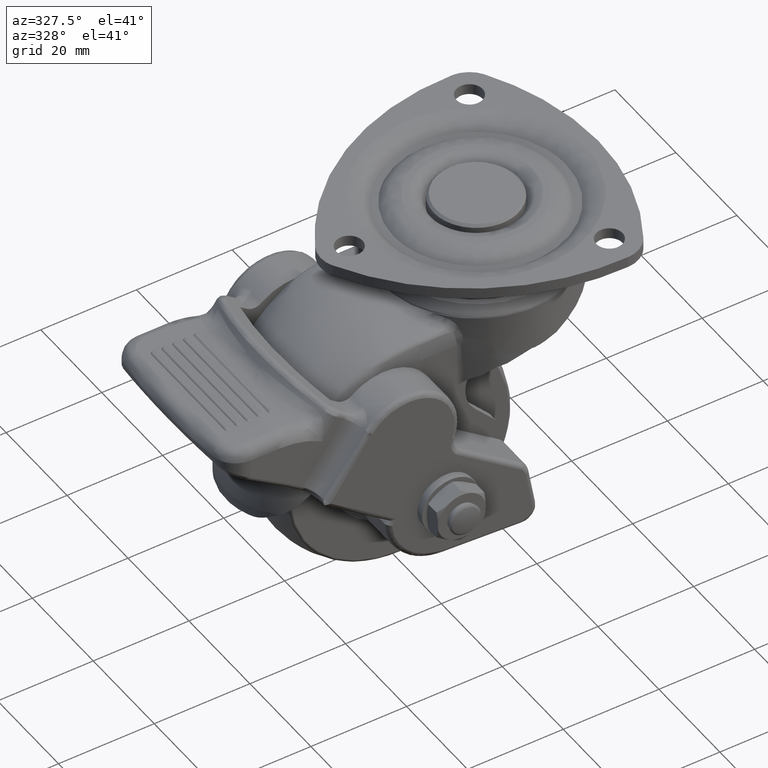
[diagram: clean part render]
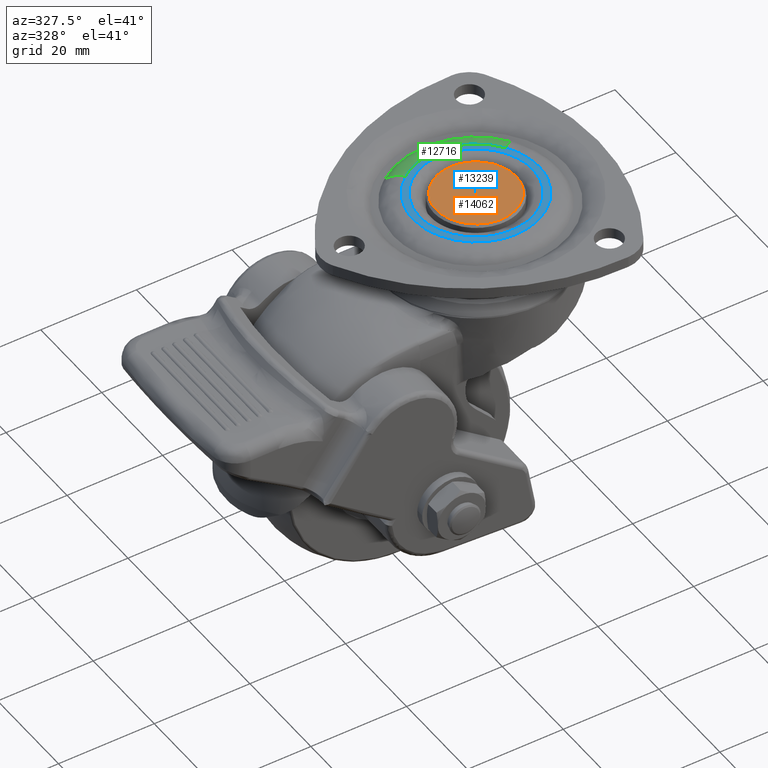
[diagram: same view with three faces highlighted in distinct colors, each labeled with its STEP entity id]
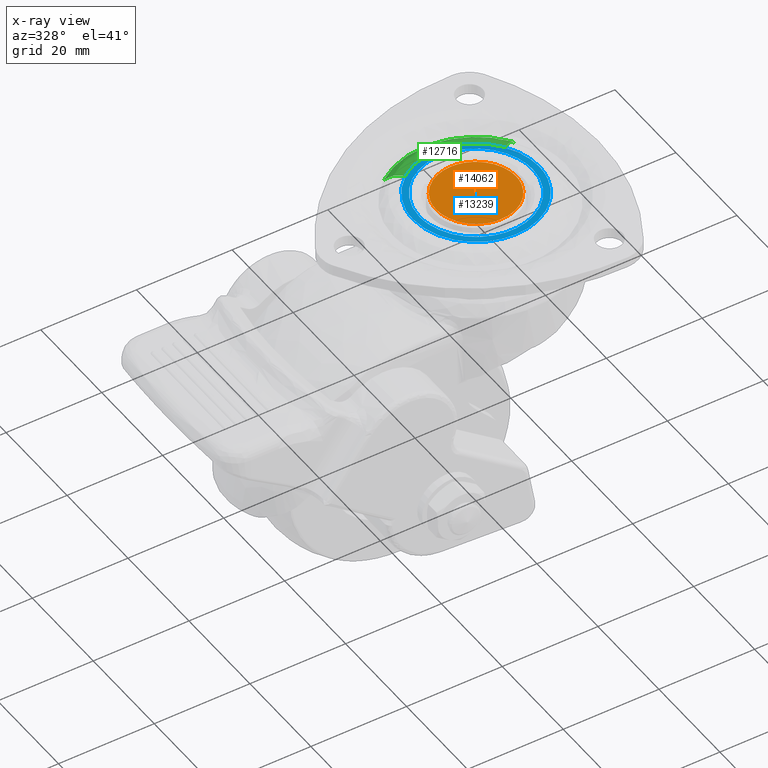
[diagram: x-ray of the same camera — body ghosted, the three highlighted faces saturated]
A machine part, auxiliary view with three faces highlighted in distinct colors.
The next image is the same camera in x-ray (body ghosted, the three faces saturated) — at least one of them is partly hidden behind the body in this view.
Their STEP definitions:

[orange] entity #14062 — the highlighted face is a freeform B-spline surface patch.
#13746=CARTESIAN_POINT('',(-0.550284787504811,-8.331847733449848,-9.000000000045095));
#13747=VERTEX_POINT('',#13746);
#13753=CARTESIAN_POINT('',(-8.350000000000000,0.0,-9.0));
#13754=VERTEX_POINT('',#13753);
#13755=CARTESIAN_POINT('',(-8.350000000000000,0.0,-9.0));
#13756=CARTESIAN_POINT('',(-8.350000000000000,-7.816708142728983,-9.0));
#13757=CARTESIAN_POINT('',(-0.550284787504811,-8.331847733449848,-9.000000000045095));
#13765=(BOUNDED_CURVE()B_SPLINE_CURVE(2,(#13755,#13756,#13757),.UNSPECIFIED.,.F.,.U.)B_SPLINE_CURVE_WITH_KNOTS((3,3),(0.500000000000000,0.738494527059110),.UNSPECIFIED.)CURVE()GEOMETRIC_REPRESENTATION_ITEM()RATIONAL_B_SPLINE_CURVE((1.0,0.720586281201061,0.974281704152363))REPRESENTATION_ITEM(''));
#13766=EDGE_CURVE('',#13754,#13747,#13765,.T.);
#13768=CARTESIAN_POINT('',(0.072866571712113,8.349682057624211,-9.000000000041032));
#13769=VERTEX_POINT('',#13768);
#13770=CARTESIAN_POINT('',(0.072866571712113,8.349682057624211,-9.000000000041032));
#13771=CARTESIAN_POINT('',(0.036433979653209,8.349999999999998,-9.000000000000002));
#13772=CARTESIAN_POINT('',(0.0,8.350000000000000,-9.0));
#13773=CARTESIAN_POINT('',(-8.350000000000000,8.350000000000000,-9.0));
#13774=CARTESIAN_POINT('',(-8.350000000000000,0.0,-9.0));
#13782=(BOUNDED_CURVE()B_SPLINE_CURVE(2,(#13770,#13771,#13772,#13773,#13774),.UNSPECIFIED.,.F.,.U.)B_SPLINE_CURVE_WITH_KNOTS((3,2,3),(0.248460105652341,0.250000000000000,0.500000000000000),.UNSPECIFIED.)CURVE()GEOMETRIC_REPRESENTATION_ITEM()RATIONAL_B_SPLINE_CURVE((0.996414028071080,0.998195901551526,1.0,0.707106781186547,1.0))REPRESENTATION_ITEM(''));
#13783=EDGE_CURVE('',#13769,#13754,#13782,.T.);
#13893=CARTESIAN_POINT('',(8.350000000000000,0.0,-9.0));
#13894=VERTEX_POINT('',#13893);
#13895=CARTESIAN_POINT('',(8.350000000000000,0.0,-9.0));
#13896=CARTESIAN_POINT('',(8.350000000000000,8.277448607872568,-9.000000000000002));
#13897=CARTESIAN_POINT('',(0.072866571712113,8.349682057624211,-9.000000000041032));
#13905=(BOUNDED_CURVE()B_SPLINE_CURVE(2,(#13895,#13896,#13897),.UNSPECIFIED.,.F.,.U.)B_SPLINE_CURVE_WITH_KNOTS((3,3),(0.0,0.248460105652341),.UNSPECIFIED.)CURVE()GEOMETRIC_REPRESENTATION_ITEM()RATIONAL_B_SPLINE_CURVE((1.0,0.708910879635021,0.996414028071080))REPRESENTATION_ITEM(''));
#13906=EDGE_CURVE('',#13894,#13769,#13905,.T.);
#13908=CARTESIAN_POINT('',(-0.550284787504811,-8.331847733449848,-9.000000000045095));
#13909=CARTESIAN_POINT('',(-0.275441788699306,-8.350000000000000,-9.0));
#13910=CARTESIAN_POINT('',(0.0,-8.350000000000000,-9.0));
#13911=CARTESIAN_POINT('',(8.350000000000000,-8.350000000000000,-9.0));
#13912=CARTESIAN_POINT('',(8.350000000000000,0.0,-9.0));
#13920=(BOUNDED_CURVE()B_SPLINE_CURVE(2,(#13908,#13909,#13910,#13911,#13912),.UNSPECIFIED.,.F.,.U.)B_SPLINE_CURVE_WITH_KNOTS((3,2,3),(0.738494527059110,0.750000000000000,1.0),.UNSPECIFIED.)CURVE()GEOMETRIC_REPRESENTATION_ITEM()RATIONAL_B_SPLINE_CURVE((0.974281704152363,0.986520499985487,1.0,0.707106781186547,1.0))REPRESENTATION_ITEM(''));
#13921=EDGE_CURVE('',#13747,#13894,#13920,.T.);
#14051=CARTESIAN_POINT('',(-9.184165437935114,-9.183580754572708,-9.0));
#14052=CARTESIAN_POINT('',(9.184165437935112,-9.183580754572708,-9.0));
#14053=CARTESIAN_POINT('',(-9.184165437935114,9.183803524548369,-9.0));
#14054=CARTESIAN_POINT('',(9.184165437935112,9.183803524548369,-9.0));
#14055=B_SPLINE_SURFACE_WITH_KNOTS('',1,1,((#14051,#14053),(#14052,#14054)),.UNSPECIFIED.,.F.,.F.,.U.,(2,2),(2,2),(0.0,18.368330875870232),(0.0,18.367384279121080),.UNSPECIFIED.);
#14056=ORIENTED_EDGE('',*,*,#13906,.T.);
#14057=ORIENTED_EDGE('',*,*,#13783,.T.);
#14058=ORIENTED_EDGE('',*,*,#13766,.T.);
#14059=ORIENTED_EDGE('',*,*,#13921,.T.);
#14060=EDGE_LOOP('',(#14056,#14057,#14058,#14059));
#14061=FACE_OUTER_BOUND('',#14060,.T.);
#14062=ADVANCED_FACE('',(#14061),#14055,.T.);

[blue] entity #13239 — the highlighted face is a freeform B-spline surface patch.
#12178=CARTESIAN_POINT('',(-11.849064373699790,-0.148907572722384,-4.398953E-016));
#12179=VERTEX_POINT('',#12178);
#12193=CARTESIAN_POINT('',(11.850000000000000,0.0,0.0));
#12194=VERTEX_POINT('',#12193);
#12195=CARTESIAN_POINT('',(11.850000000000000,0.0,0.0));
#12196=CARTESIAN_POINT('',(11.850000000000000,-11.850000000000000,0.0));
#12197=CARTESIAN_POINT('',(0.0,-11.850000000000000,0.0));
#12198=CARTESIAN_POINT('',(-11.702016369192156,-11.849999999999998,0.0));
#12199=CARTESIAN_POINT('',(-11.849064373699791,-0.148907572722384,-4.398953E-016));
#12207=(BOUNDED_CURVE()B_SPLINE_CURVE(2,(#12195,#12196,#12197,#12198,#12199),.UNSPECIFIED.,.F.,.U.)B_SPLINE_CURVE_WITH_KNOTS((3,2,3),(0.500000000000000,0.750000000000000,0.997784295918580),.UNSPECIFIED.)CURVE()GEOMETRIC_REPRESENTATION_ITEM()RATIONAL_B_SPLINE_CURVE((1.0,0.707106781186547,1.0,0.709702639987929,0.994854295636766))REPRESENTATION_ITEM(''));
#12208=EDGE_CURVE('',#12194,#12179,#12207,.T.);
#12210=CARTESIAN_POINT('',(-0.826339031500371,11.821153233718951,-5.785947E-016));
#12211=VERTEX_POINT('',#12210);
#12212=CARTESIAN_POINT('',(-0.826339031500371,11.821153233718951,-5.785947E-016));
#12213=CARTESIAN_POINT('',(-0.413673023536388,11.850000000000000,0.0));
#12214=CARTESIAN_POINT('',(0.0,11.850000000000000,0.0));
#12215=CARTESIAN_POINT('',(11.850000000000000,11.850000000000000,0.0));
#12216=CARTESIAN_POINT('',(11.850000000000000,0.0,0.0));
#12224=(BOUNDED_CURVE()B_SPLINE_CURVE(2,(#12212,#12213,#12214,#12215,#12216),.UNSPECIFIED.,.F.,.U.)B_SPLINE_CURVE_WITH_KNOTS((3,2,3),(0.237833686522928,0.250000000000000,0.500000000000000),.UNSPECIFIED.)CURVE()GEOMETRIC_REPRESENTATION_ITEM()RATIONAL_B_SPLINE_CURVE((0.972879876361248,0.985746277138427,1.0,0.707106781186547,1.0))REPRESENTATION_ITEM(''));
#12225=EDGE_CURVE('',#12211,#12194,#12224,.T.);
#12262=CARTESIAN_POINT('',(-11.850000000000000,0.0,0.0));
#12263=VERTEX_POINT('',#12262);
#12264=CARTESIAN_POINT('',(-11.850000000000000,0.0,0.0));
#12265=CARTESIAN_POINT('',(-11.850000000000001,11.050561639323183,0.0));
#12266=CARTESIAN_POINT('',(-0.826339031500371,11.821153233718952,-5.785947E-016));
#12274=(BOUNDED_CURVE()B_SPLINE_CURVE(2,(#12264,#12265,#12266),.UNSPECIFIED.,.F.,.U.)B_SPLINE_CURVE_WITH_KNOTS((3,3),(0.0,0.237833686522928),.UNSPECIFIED.)CURVE()GEOMETRIC_REPRESENTATION_ITEM()RATIONAL_B_SPLINE_CURVE((1.0,0.721360504048120,0.972879876361248))REPRESENTATION_ITEM(''));
#12275=EDGE_CURVE('',#12263,#12211,#12274,.T.);
#12277=CARTESIAN_POINT('',(-11.849064373699791,-0.148907572722384,-4.398953E-016));
#12278=CARTESIAN_POINT('',(-11.849999999999998,-0.074456725809995,0.0));
#12279=CARTESIAN_POINT('',(-11.850000000000000,0.0,0.0));
#12287=(BOUNDED_CURVE()B_SPLINE_CURVE(2,(#12277,#12278,#12279),.UNSPECIFIED.,.F.,.U.)B_SPLINE_CURVE_WITH_KNOTS((3,3),(0.997784295918579,1.0),.UNSPECIFIED.)CURVE()GEOMETRIC_REPRESENTATION_ITEM()RATIONAL_B_SPLINE_CURVE((0.994854295636764,0.997404141198618,1.0))REPRESENTATION_ITEM(''));
#12288=EDGE_CURVE('',#12179,#12263,#12287,.T.);
#12532=CARTESIAN_POINT('',(-8.096999572229132,10.424055578504991,-9.905429E-016));
#12533=VERTEX_POINT('',#12532);
#12534=CARTESIAN_POINT('',(-13.199330919542421,0.0,0.0));
#12535=VERTEX_POINT('',#12534);
#12536=CARTESIAN_POINT('',(-8.096999572229132,10.424055578504994,-9.905429E-016));
#12537=CARTESIAN_POINT('',(-13.199330919542417,6.460763704952251,0.0));
#12538=CARTESIAN_POINT('',(-13.199330919542421,0.0,0.0));
#12546=(BOUNDED_CURVE()B_SPLINE_CURVE(2,(#12536,#12537,#12538),.UNSPECIFIED.,.F.,.U.)B_SPLINE_CURVE_WITH_KNOTS((3,3),(0.856116047956512,1.0),.UNSPECIFIED.)CURVE()GEOMETRIC_REPRESENTATION_ITEM()RATIONAL_B_SPLINE_CURVE((0.856895687852808,0.831429464601529,1.0))REPRESENTATION_ITEM(''));
#12547=EDGE_CURVE('',#12533,#12535,#12546,.T.);
#12611=CARTESIAN_POINT('',(10.870079279898199,7.487570580533580,-9.077451E-016));
#12612=VERTEX_POINT('',#12611);
#12626=CARTESIAN_POINT('',(13.199330919542421,0.0,0.0));
#12627=VERTEX_POINT('',#12626);
#12628=CARTESIAN_POINT('',(13.199330919542421,0.0,0.0));
#12629=CARTESIAN_POINT('',(13.199330919542424,4.106079918617424,0.0));
#12630=CARTESIAN_POINT('',(10.870079279898205,7.487570580533580,-9.077451E-016));
#12638=(BOUNDED_CURVE()B_SPLINE_CURVE(2,(#12628,#12629,#12630),.UNSPECIFIED.,.F.,.U.)B_SPLINE_CURVE_WITH_KNOTS((3,3),(0.500000000000000,0.597429953509836),.UNSPECIFIED.)CURVE()GEOMETRIC_REPRESENTATION_ITEM()RATIONAL_B_SPLINE_CURVE((1.0,0.885853709230637,0.860677560885108))REPRESENTATION_ITEM(''));
#12639=EDGE_CURVE('',#12627,#12612,#12638,.T.);
#12641=CARTESIAN_POINT('',(-13.199330919542421,0.0,0.0));
#12642=CARTESIAN_POINT('',(-13.199330919542419,-13.199330919542419,0.0));
#12643=CARTESIAN_POINT('',(0.0,-13.199330919542421,0.0));
#12644=CARTESIAN_POINT('',(13.199330919542419,-13.199330919542419,0.0));
#12645=CARTESIAN_POINT('',(13.199330919542421,0.0,0.0));
#12653=(BOUNDED_CURVE()B_SPLINE_CURVE(2,(#12641,#12642,#12643,#12644,#12645),.UNSPECIFIED.,.F.,.U.)B_SPLINE_CURVE_WITH_KNOTS((3,2,3),(0.0,0.250000000000000,0.500000000000000),.UNSPECIFIED.)CURVE()GEOMETRIC_REPRESENTATION_ITEM()RATIONAL_B_SPLINE_CURVE((1.0,0.707106781186547,1.0,0.707106781186547,1.0))REPRESENTATION_ITEM(''));
#12654=EDGE_CURVE('',#12535,#12627,#12653,.T.);
#12682=CARTESIAN_POINT('',(10.870079279898203,7.487570580533580,-9.077451E-016));
#12683=CARTESIAN_POINT('',(6.935682152717483,13.199330919542417,0.0));
#12684=CARTESIAN_POINT('',(0.0,13.199330919542421,0.0));
#12685=CARTESIAN_POINT('',(-4.524117522717241,13.199330919542419,0.0));
#12686=CARTESIAN_POINT('',(-8.096999572229132,10.424055578504994,-9.905429E-016));
#12694=(BOUNDED_CURVE()B_SPLINE_CURVE(2,(#12682,#12683,#12684,#12685,#12686),.UNSPECIFIED.,.F.,.U.)B_SPLINE_CURVE_WITH_KNOTS((3,2,3),(0.597429953509836,0.750000000000000,0.856116047956512),.UNSPECIFIED.)CURVE()GEOMETRIC_REPRESENTATION_ITEM()RATIONAL_B_SPLINE_CURVE((0.860677560885107,0.821253071955911,1.0,0.875677316585018,0.856895687852808))REPRESENTATION_ITEM(''));
#12695=EDGE_CURVE('',#12612,#12533,#12694,.T.);
#13222=CARTESIAN_POINT('',(-14.517944522862480,14.517357747182620,0.0));
#13223=CARTESIAN_POINT('',(14.517944758884910,14.517357747182620,0.0));
#13224=CARTESIAN_POINT('',(-14.517944522862480,-14.517916843784240,0.0));
#13225=CARTESIAN_POINT('',(14.517944758884910,-14.517916843784240,0.0));
#13226=B_SPLINE_SURFACE_WITH_KNOTS('',1,1,((#13222,#13224),(#13223,#13225)),.UNSPECIFIED.,.F.,.F.,.U.,(2,2),(2,2),(0.0,29.035889281747380),(0.0,29.035274590966861),.UNSPECIFIED.);
#13227=ORIENTED_EDGE('',*,*,#12654,.T.);
#13228=ORIENTED_EDGE('',*,*,#12639,.T.);
#13229=ORIENTED_EDGE('',*,*,#12695,.T.);
#13230=ORIENTED_EDGE('',*,*,#12547,.T.);
#13231=EDGE_LOOP('',(#13227,#13228,#13229,#13230));
#13232=FACE_OUTER_BOUND('',#13231,.T.);
#13233=ORIENTED_EDGE('',*,*,#12208,.T.);
#13234=ORIENTED_EDGE('',*,*,#12288,.T.);
#13235=ORIENTED_EDGE('',*,*,#12275,.T.);
#13236=ORIENTED_EDGE('',*,*,#12225,.T.);
#13237=EDGE_LOOP('',(#13233,#13234,#13235,#13236));
#13238=FACE_BOUND('',#13237,.T.);
#13239=ADVANCED_FACE('',(#13232,#13238),#13226,.F.);

[green] entity #12716 — the highlighted face is a freeform B-spline surface patch.
#12532=CARTESIAN_POINT('',(-8.096999572229132,10.424055578504991,-9.905429E-016));
#12533=VERTEX_POINT('',#12532);
#12549=CARTESIAN_POINT('',(-10.581842856992370,13.623037216530340,-2.068776652399121));
#12550=VERTEX_POINT('',#12549);
#12551=CARTESIAN_POINT('',(-10.581842856992374,13.623037216530346,-2.068776652399121));
#12552=CARTESIAN_POINT('',(-9.663494223816450,12.440756600625782,-2.044992E-009));
#12553=CARTESIAN_POINT('',(-8.096999572229132,10.424055578504994,-9.905429E-016));
#12561=(BOUNDED_CURVE()B_SPLINE_CURVE(2,(#12551,#12552,#12553),.UNSPECIFIED.,.F.,.U.)B_SPLINE_CURVE_WITH_KNOTS((3,3),(-1.604402284492481,-0.381259844846652),.UNSPECIFIED.)CURVE()GEOMETRIC_REPRESENTATION_ITEM()RATIONAL_B_SPLINE_CURVE((0.894360832356013,0.797516979636053,0.896658200632449))REPRESENTATION_ITEM(''));
#12562=EDGE_CURVE('',#12550,#12533,#12561,.T.);
#12596=CARTESIAN_POINT('',(14.205937308855130,9.785389372322882,-2.068774999643191));
#12597=VERTEX_POINT('',#12596);
#12611=CARTESIAN_POINT('',(10.870079279898199,7.487570580533580,-9.077451E-016));
#12612=VERTEX_POINT('',#12611);
#12613=CARTESIAN_POINT('',(14.205937308855130,9.785389372322882,-2.068774999643191));
#12614=CARTESIAN_POINT('',(12.973069693719459,8.936160673295948,-1.012052E-009));
#12615=CARTESIAN_POINT('',(10.870079279898203,7.487570580533580,-9.077451E-016));
#12623=(BOUNDED_CURVE()B_SPLINE_CURVE(2,(#12613,#12614,#12615),.UNSPECIFIED.,.F.,.U.)B_SPLINE_CURVE_WITH_KNOTS((3,3),(-1.604401736456949,-0.381259844302068),.UNSPECIFIED.)CURVE()GEOMETRIC_REPRESENTATION_ITEM()RATIONAL_B_SPLINE_CURVE((0.914941624740991,0.815869351736809,0.917291948540221))REPRESENTATION_ITEM(''));
#12624=EDGE_CURVE('',#12597,#12612,#12623,.T.);
#12659=CARTESIAN_POINT('',(14.311704867972390,9.858244596566697,-2.254983057805082));
#12660=CARTESIAN_POINT('',(4.453460271405693,24.169949464539076,-2.254983057805083));
#12661=CARTESIAN_POINT('',(-9.858244596566696,14.311704867972390,-2.254983057805082));
#12662=CARTESIAN_POINT('',(-10.267839045913052,14.029566415265142,-2.254983057805083));
#12663=CARTESIAN_POINT('',(-10.660626934337074,13.724464146937324,-2.254983057805082));
#12664=CARTESIAN_POINT('',(13.025235817055762,8.972093946672398,0.123260597122288));
#12665=CARTESIAN_POINT('',(4.053141870383365,21.997329763728168,0.123260597122288));
#12666=CARTESIAN_POINT('',(-8.972093946672395,13.025235817055762,0.123260597122288));
#12667=CARTESIAN_POINT('',(-9.344870240014817,12.768458590759334,0.123260597122288));
#12668=CARTESIAN_POINT('',(-9.702350702335943,12.490781750023055,0.123260597122288));
#12669=CARTESIAN_POINT('',(10.684340278850822,7.359629114318334,-0.005089389672772));
#12670=CARTESIAN_POINT('',(3.324711164532488,18.043969393169160,-0.005089389672772));
#12671=CARTESIAN_POINT('',(-7.359629114318333,10.684340278850822,-0.005089389672772));
#12672=CARTESIAN_POINT('',(-7.665410047723302,10.473711058762682,-0.005089389672772));
#12673=CARTESIAN_POINT('',(-7.958644117042684,10.245938303194006,-0.005089389672772));
#12681=(BOUNDED_SURFACE()B_SPLINE_SURFACE(2,2,((#12659,#12664,#12669),(#12660,#12665,#12670),(#12661,#12666,#12671),(#12662,#12667,#12672),(#12663,#12668,#12673)),.UNSPECIFIED.,.F.,.F.,.U.)B_SPLINE_SURFACE_WITH_KNOTS((3,2,3),(3,3),(0.0,28.793528144807830,29.945268172214220),(0.0,5.292320125330656),.UNSPECIFIED.)GEOMETRIC_REPRESENTATION_ITEM()RATIONAL_B_SPLINE_SURFACE(((0.925339286386914,0.805354339478901,0.927924309289756),(0.654313684302508,0.569471514703544,0.656141571526630),(0.925339286386914,0.805354339478901,0.927924309289756),(0.914498272642344,0.795919035486103,0.917053010146920),(0.904524539170236,0.787238555092871,0.907051414106096)))REPRESENTATION_ITEM('')SURFACE());
#12682=CARTESIAN_POINT('',(10.870079279898203,7.487570580533580,-9.077451E-016));
#12683=CARTESIAN_POINT('',(6.935682152717483,13.199330919542417,0.0));
#12684=CARTESIAN_POINT('',(0.0,13.199330919542421,0.0));
#12685=CARTESIAN_POINT('',(-4.524117522717241,13.199330919542419,0.0));
#12686=CARTESIAN_POINT('',(-8.096999572229132,10.424055578504994,-9.905429E-016));
#12694=(BOUNDED_CURVE()B_SPLINE_CURVE(2,(#12682,#12683,#12684,#12685,#12686),.UNSPECIFIED.,.F.,.U.)B_SPLINE_CURVE_WITH_KNOTS((3,2,3),(0.597429953509836,0.750000000000000,0.856116047956512),.UNSPECIFIED.)CURVE()GEOMETRIC_REPRESENTATION_ITEM()RATIONAL_B_SPLINE_CURVE((0.860677560885107,0.821253071955911,1.0,0.875677316585018,0.856895687852808))REPRESENTATION_ITEM(''));
#12695=EDGE_CURVE('',#12612,#12533,#12694,.T.);
#12696=ORIENTED_EDGE('',*,*,#12695,.F.);
#12697=ORIENTED_EDGE('',*,*,#12624,.F.);
#12698=CARTESIAN_POINT('',(-10.581842856992374,13.623037216530342,-2.068776652399121));
#12699=CARTESIAN_POINT('',(-5.912498984627040,17.250000791466736,-2.068776384916700));
#12700=CARTESIAN_POINT('',(-0.000000444011991,17.250000571452532,-2.068775999921590));
#12701=CARTESIAN_POINT('',(9.064134800521885,17.250000234160535,-2.068775409706184));
#12702=CARTESIAN_POINT('',(14.205937308855132,9.785389372322882,-2.068774999643191));
#12710=(BOUNDED_CURVE()B_SPLINE_CURVE(2,(#12698,#12699,#12700,#12701,#12702),.UNSPECIFIED.,.F.,.U.)B_SPLINE_CURVE_WITH_KNOTS((3,2,3),(0.143883957666823,0.250000000000000,0.402570046491320),.UNSPECIFIED.)CURVE()GEOMETRIC_REPRESENTATION_ITEM()RATIONAL_B_SPLINE_CURVE((0.856895689843372,0.875677323173164,1.0,0.821253071954557,0.860677560885705))REPRESENTATION_ITEM(''));
#12711=EDGE_CURVE('',#12550,#12597,#12710,.T.);
#12712=ORIENTED_EDGE('',*,*,#12711,.F.);
#12713=ORIENTED_EDGE('',*,*,#12562,.T.);
#12714=EDGE_LOOP('',(#12696,#12697,#12712,#12713));
#12715=FACE_OUTER_BOUND('',#12714,.T.);
#12716=ADVANCED_FACE('',(#12715),#12681,.T.);